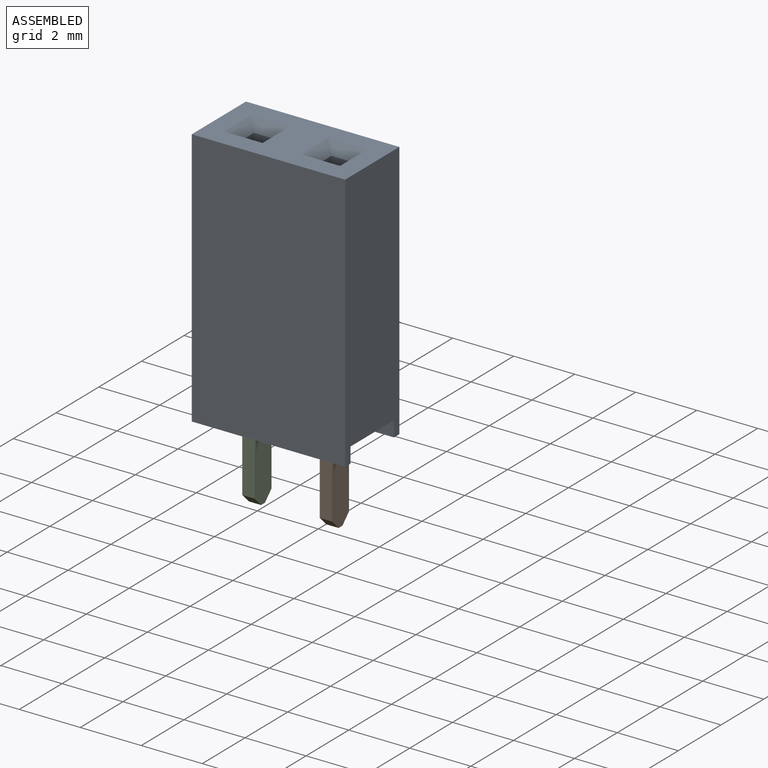
[diagram: assembled view]
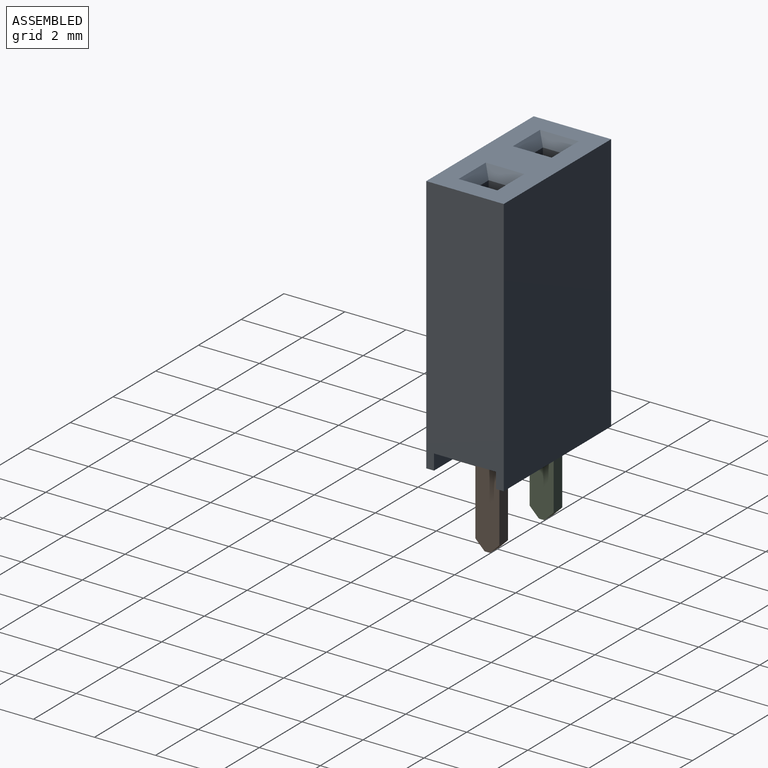
[diagram: assembled view, second angle]
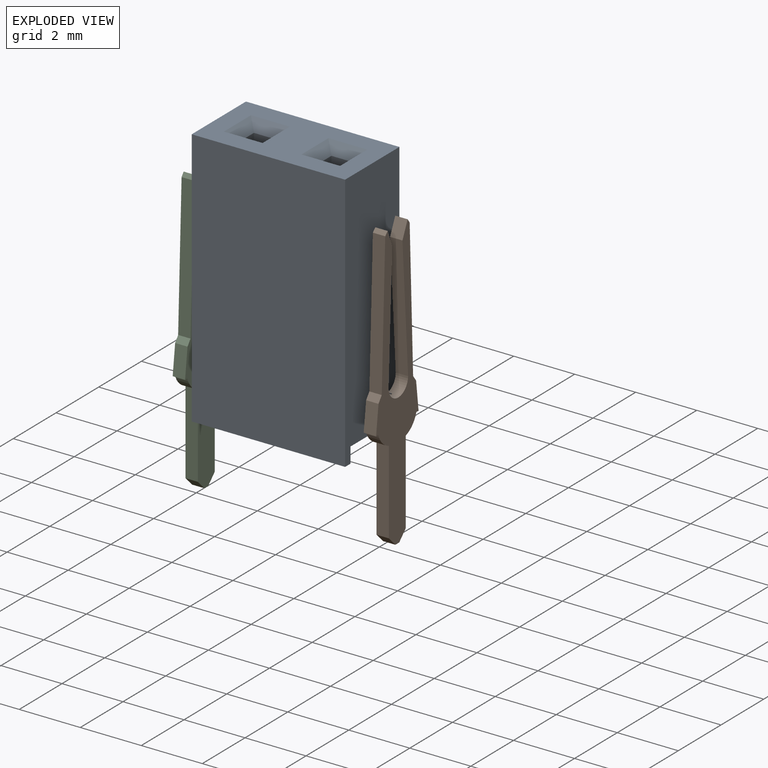
[diagram: exploded view]
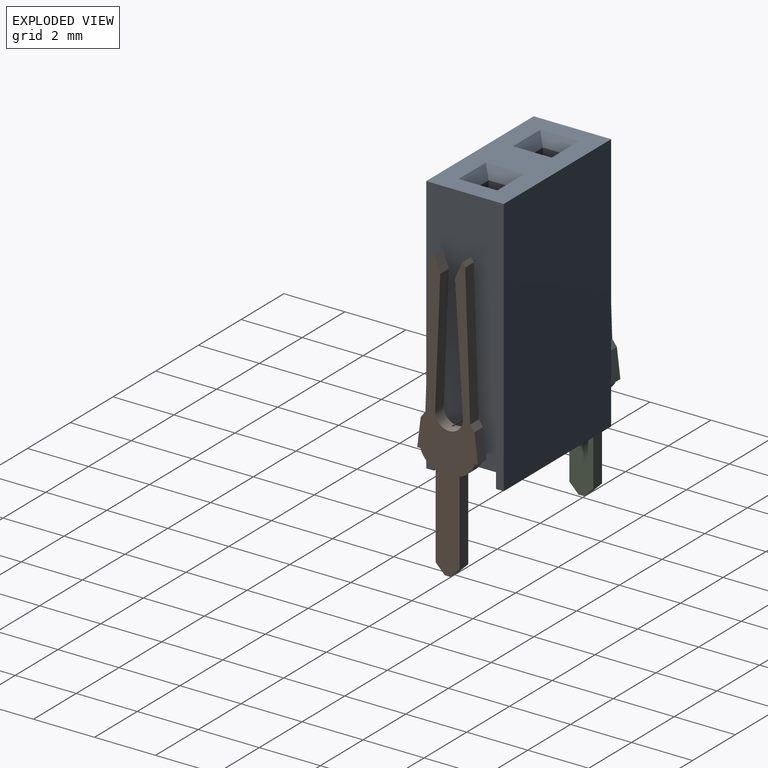
[diagram: exploded view, second angle]
ASSEMBLY  parts=3 mates=2
PART A: 42 faces, bbox 5x2.5x8.5 mm
  f0: plane 7.11x0.41mm, normal (0,-1,0), area 2.9mm2, adj f2,f3,f4,f38
  f1: plane 7.11x0.41mm, normal (0,-1,0), area 2.9mm2, adj f5,f6,f7,f38
  f2: plane 7.11x0.68mm, normal (-1,0,0), area 4.8mm2, adj f0,f3,f8,f38
  f3: plane 0.68x0.41mm, normal (0,0,-1), area 0.3mm2, adj f0,f2,f4,f8
  f4: plane 7.11x0.68mm, normal (1,0,0), area 4.8mm2, adj f0,f3,f8,f38
  f5: plane 7.11x0.68mm, normal (-1,0,0), area 4.8mm2, adj f1,f6,f11,f38
  f6: plane 0.68x0.41mm, normal (0,0,-1), area 0.3mm2, adj f1,f5,f7,f11
  f7: plane 7.11x0.68mm, normal (1,0,0), area 4.8mm2, adj f1,f6,f11,f38
  f8: plane 7.68x0.64mm, normal (0,-1,0), area 2mm2, adj f2,f3,f4,f14,f15,f25,f38
  f9: plane 7.11x0.41mm, normal (0,1,0), area 2.9mm2, adj f13,f16,f17,f38
  f10: plane 7.11x0.41mm, normal (0,1,0), area 2.9mm2, adj f19,f20,f21,f38
  f11: plane 7.68x0.64mm, normal (0,-1,0), area 2mm2, adj f5,f6,f7,f18,f22,f29,f38
  f12: plane 5.03x0.25mm, normal (0,0,-1), area 1.3mm2, adj f23,f32,f35,f36
  f13: plane 7.11x0.68mm, normal (-1,0,0), area 4.8mm2, adj f9,f17,f33,f38
  f14: plane 7.68x0.64mm, normal (-1,0,0), area 4.9mm2, adj f8,f24,f33,f38
  f15: plane 7.68x0.64mm, normal (1,0,0), area 4.9mm2, adj f8,f26,f33,f38
  f16: plane 7.11x0.68mm, normal (1,0,0), area 4.8mm2, adj f9,f17,f33,f38
  f17: plane 0.68x0.41mm, normal (0,0,-1), area 0.3mm2, adj f9,f13,f16,f33
  f18: plane 7.68x0.64mm, normal (1,0,0), area 4.9mm2, adj f11,f30,f34,f38
  f19: plane 7.11x0.68mm, normal (1,0,0), area 4.8mm2, adj f10,f20,f34,f38
  f20: plane 0.68x0.41mm, normal (0,0,-1), area 0.3mm2, adj f10,f19,f21,f34
  f21: plane 7.11x0.68mm, normal (-1,0,0), area 4.8mm2, adj f10,f20,f34,f38
  f22: plane 7.68x0.64mm, normal (-1,0,0), area 4.9mm2, adj f11,f28,f34,f38
  f23: plane 8.51x5.03mm, normal (0,1,0), area 42.8mm2, adj f12,f35,f36,f37
  f24: plane 1.27x0.32mm, normal (-0.71,0,0.71), area 0.4mm2, adj f14,f25,f27,f37
  f25: plane 1.27x0.32mm, normal (0,-0.71,0.71), area 0.4mm2, adj f8,f24,f26,f37
  f26: plane 1.27x0.32mm, normal (0.71,0,0.71), area 0.4mm2, adj f15,f25,f27,f37
  f27: plane 1.27x0.32mm, normal (0,0.71,0.71), area 0.4mm2, adj f24,f26,f33,f37
  f28: plane 1.27x0.32mm, normal (-0.71,0,0.71), area 0.4mm2, adj f22,f29,f31,f37
  f29: plane 1.27x0.32mm, normal (0,-0.71,0.71), area 0.4mm2, adj f11,f28,f30,f37
  f30: plane 1.27x0.32mm, normal (0.71,0,0.71), area 0.4mm2, adj f18,f29,f31,f37
  f31: plane 1.27x0.32mm, normal (0,0.71,0.71), area 0.4mm2, adj f28,f30,f34,f37
  f32: plane 5.03x0.51mm, normal (0,-1,0), area 2.6mm2, adj f12,f35,f36,f38
  f33: plane 7.68x0.64mm, normal (0,1,0), area 2mm2, adj f13,f14,f15,f16,f17,f27,f38
  f34: plane 7.68x0.64mm, normal (0,1,0), area 2mm2, adj f18,f19,f20,f21,f22,f31,f38
  f35: plane 8.51x2.54mm, normal (-1,0,0), area 20.6mm2, adj f12,f23,f32,f37,f38,f39,f40,f41
  f36: plane 8.51x2.54mm, normal (1,0,0), area 20.6mm2, adj f12,f23,f32,f37,f38,f39,f40,f41
  f37: plane 5.03x2.54mm, normal (0,0,1), area 9.5mm2, adj f23,f24,f25,f26,f27,f28,f29,f30
  f38: plane 5.03x2.03mm, normal (0,0,-1), area 8.3mm2, adj f0,f1,f2,f4,f5,f7,f8,f9
  f39: plane 8.51x5.03mm, normal (0,-1,0), area 42.8mm2, adj f35,f36,f37,f41
  f40: plane 5.03x0.51mm, normal (0,1,0), area 2.6mm2, adj f35,f36,f38,f41
  f41: plane 5.03x0.25mm, normal (0,0,-1), area 1.3mm2, adj f35,f36,f39,f40
PART B: 24 faces, bbox 2x0.4x9.4 mm
  f0: plane 9.43x1.99mm, normal (0,-1,0), area 7.7mm2, adj f1,f2,f3,f4,f5,f6,f7,f8
  f1: plane 0.41x0.18mm, normal (0,0,1), area 0.1mm2, adj f0,f2,f18,f21
  f2: plane 0.41x0.31mm, normal (0.71,0,0.71), area 0.2mm2, adj f0,f1,f3,f21
  f3: plane 2.74x0.41mm, normal (1,0,0), area 1.1mm2, adj f0,f2,f4,f21
  f4: cylinder r=0.79mm len=0.51mm, axis (0,1,0), area 0.3mm2, adj f0,f3,f5,f21
  f5: plane 0.41x0.1mm, normal (0,0,1), area 0mm2, adj f0,f4,f6,f21
  f6: plane 0.94x0.41mm, normal (0.99,0,-0.12), area 0.4mm2, adj f0,f5,f7,f21
  f7: plane 0.41x0.19mm, normal (0.8,0,-0.6), area 0.1mm2, adj f0,f6,f8,f21
  f8: plane 4.62x0.41mm, normal (1,0,-0.03), area 1.9mm2, adj f0,f7,f9,f21
  f9: plane 0.41x0.13mm, normal (0.8,0,-0.6), area 0.1mm2, adj f0,f8,f10,f21
  f10: plane 0.54x0.41mm, normal (-0.91,0,-0.41), area 0.2mm2, adj f0,f9,f11,f21
  f11: plane 4.12x0.41mm, normal (-1,0,0.06), area 1.7mm2, adj f0,f10,f12,f21
  f12: cylinder r=0.46mm len=0.91mm, axis (0,1,0), area 0.6mm2, adj f0,f11,f13,f21
  f13: plane 4.12x0.41mm, normal (1,0,0.04), area 1.7mm2, adj f0,f12,f14,f21
  f14: plane 0.55x0.41mm, normal (0.93,0,-0.36), area 0.2mm2, adj f0,f13,f15,f21
  f15: plane 0.41x0.12mm, normal (-0.7,0,-0.71), area 0.1mm2, adj f0,f14,f16,f21
  f16: plane 4.64x0.41mm, normal (-1,0,-0.03), area 1.9mm2, adj f0,f15,f20,f21
  f17: plane 2.74x0.41mm, normal (-1,0,0), area 1.1mm2, adj f0,f18,f19,f21
  f18: plane 0.41x0.31mm, normal (-0.71,0,0.71), area 0.2mm2, adj f0,f1,f17,f21
  f19: cylinder r=0.79mm len=0.51mm, axis (0,1,0), area 0.3mm2, adj f0,f17,f21,f22
  f20: plane 0.41x0.2mm, normal (-0.8,0,-0.6), area 0.1mm2, adj f0,f16,f21,f23
  f21: plane 9.43x1.99mm, normal (0,1,0), area 7.7mm2, adj f1,f2,f3,f4,f5,f6,f7,f8
  f22: plane 0.41x0.1mm, normal (0,0,1), area 0mm2, adj f0,f19,f21,f23
  f23: plane 0.92x0.41mm, normal (-0.99,0,-0.12), area 0.4mm2, adj f0,f20,f21,f22
PART C: same geometry as B
PLACE A t=(5.9,-55.88,0)mm
PLACE B rot(axis=(0.71,0.71,0),180deg) t=(8.44,-55.88,-0.3)mm
PLACE C rot(axis=(0.71,-0.71,0),180deg) t=(5.9,-55.88,-0.3)mm
MATE fastened B.f21 <-> A.f2  axis (1,0,0) through (8.64,-55.48,-3.75)mm
MATE fastened C.f0 <-> A.f5  axis (1,0,0) through (6.1,-55.48,-3.75)mm
